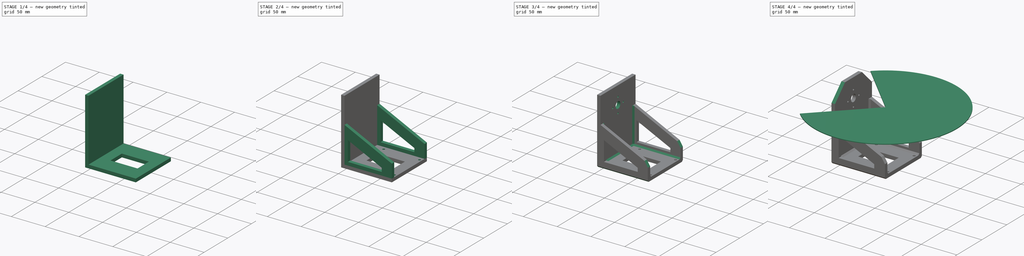
[diagram: build sequence overview — one tinted view per stage of 4, left to right]
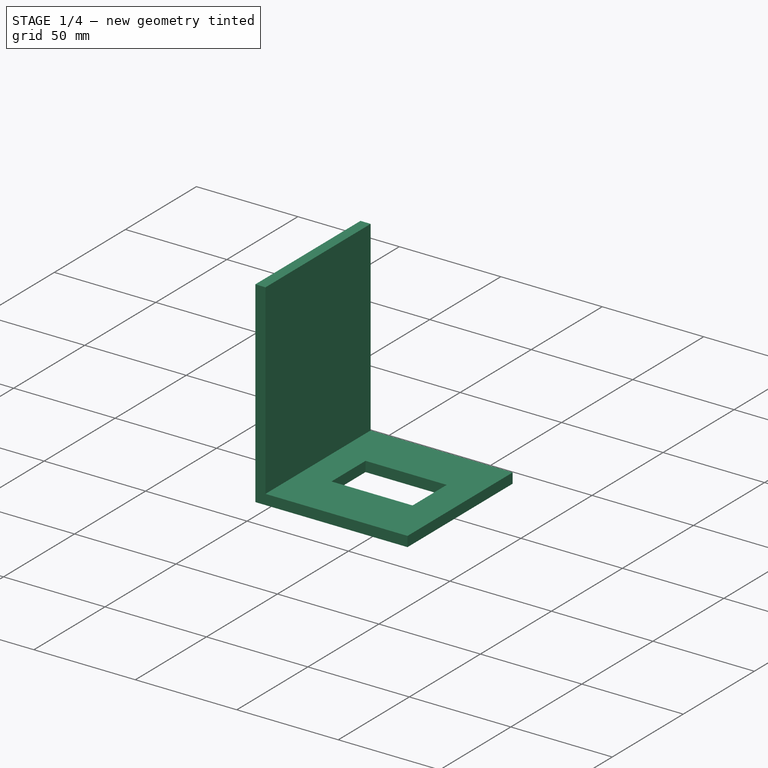
[diagram: stage 1 of 4 — iso view after this stage's code; geometry added in this stage tinted green]
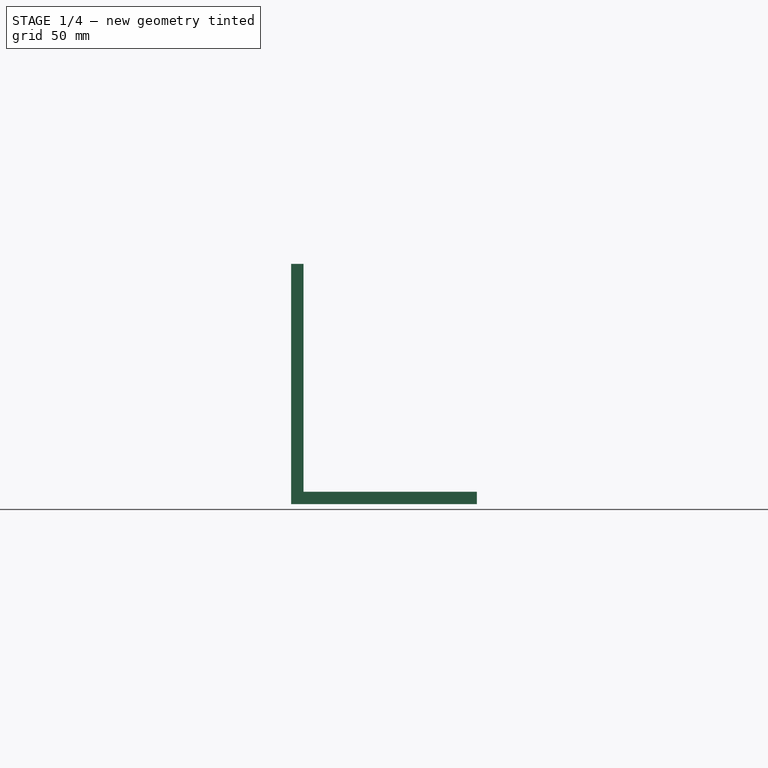
[diagram: stage 1 of 4 — front view after this stage's code; geometry added in this stage tinted green]
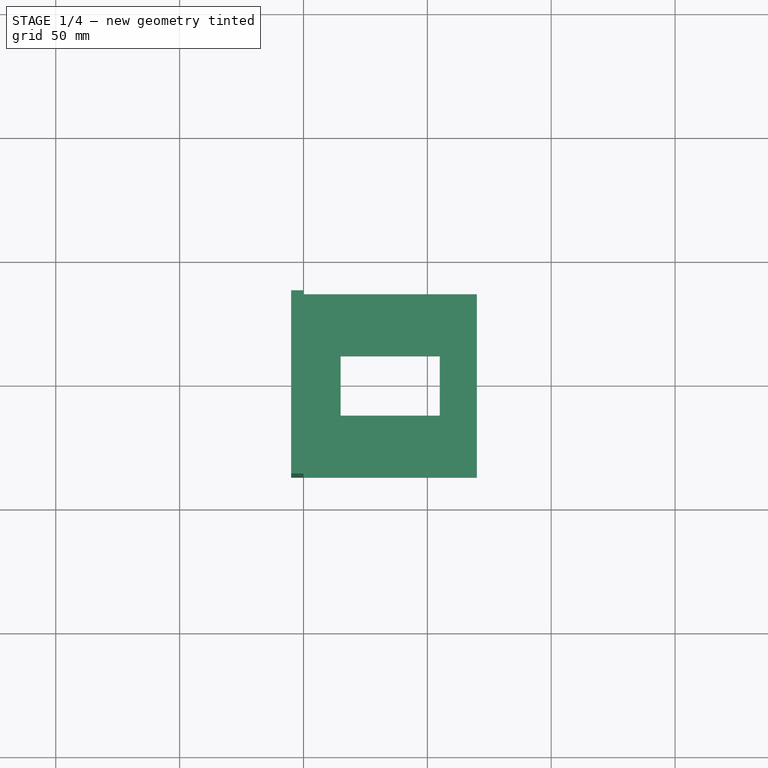
[diagram: stage 1 of 4 — top view after this stage's code; geometry added in this stage tinted green]
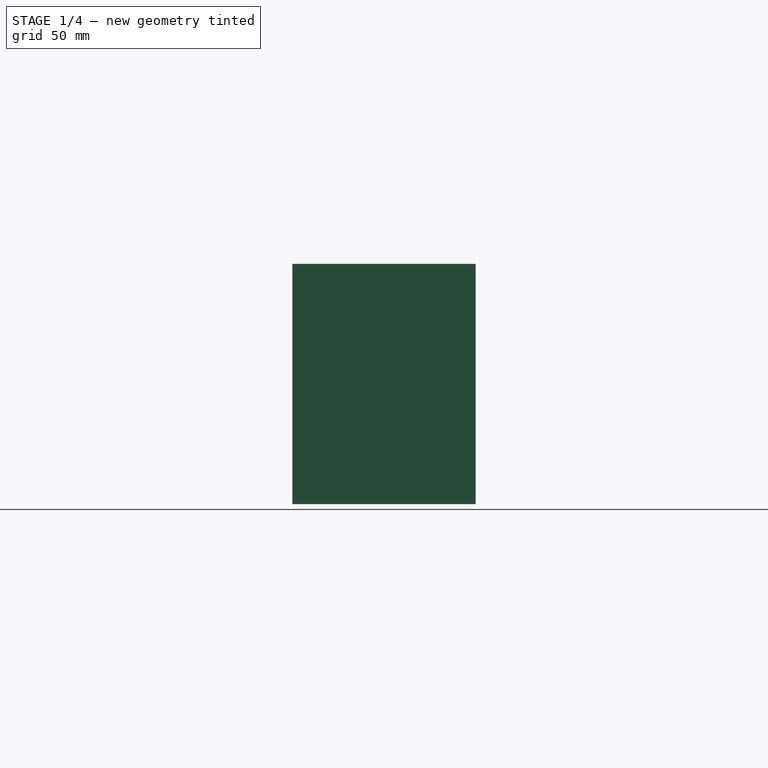
[diagram: stage 1 of 4 — right view after this stage's code; geometry added in this stage tinted green]
FCSTD DOCUMENT  (FreeCAD 0.20R29410 (Git))
Label: UTM_30LX_stand-df
License: All rights reserved
LicenseURL: http://en.wikipedia.org/wiki/All_rights_reserved
objects: Sketcher::SketchObject×6, PartDesign::Pad×4, PartDesign::Chamfer×3, Part::Feature×2, PartDesign::Body×2, Spreadsheet::Sheet×1, PartDesign::Mirrored×1, PartDesign::Hole×1, PartDesign::Pocket×1
note: 29 computed .brp shape members not serialized (recipe doc carries the construction recipe); baked Part::Feature solids carry a one-line shape summary decoded from their .brp

FEATURE [PartDesign::Body] Body001  label="scanArea"
  Group = -> [Sketch005,Pad002]
  Origin = -> Origin001
  Tip = -> Pad002
FEATURE [PartDesign::Pad] Pad  label="bottom"
  Direction = (0,0,1)
  Length = 5
  Length2 = 10
  Profile = -> Sketch004
  ReferenceAxis = -> Sketch004 [N_Axis]
  Reversed = true
  Type = 0
  expr: Length = <<params>>.wallThickness
FEATURE [Sketcher::SketchObject] Sketch006  label="backSketch"
  FullyConstrained = true
  MapMode = 5
  Placement = pos=(0,0,0) rot=(0.57735,0.57735,0.57735;2.0944rad)
  Support = -> [YZ_Plane]
  expr: Constraints[10] = <<params>>.height
  expr: Constraints[8] = <<params>>.wallThickness
  expr: Constraints[9] = <<params>>.width
  sketch-geometry (4):
    g0: LineSegment StartX=-37 StartY=92 StartZ=0 EndX=37 EndY=92 EndZ=0
    g1: LineSegment StartX=37 StartY=92 StartZ=0 EndX=37 EndY=-5 EndZ=0
    g2: LineSegment StartX=37 StartY=-5 StartZ=0 EndX=-37 EndY=-5 EndZ=0
    g3: LineSegment StartX=-37 StartY=-5 StartZ=0 EndX=-37 EndY=92 EndZ=0
  constraints (11):
    c: Coincident(g0,g1)
    c: Coincident(g1,g2)
    c: Coincident(g2,g3)
    c: Coincident(g3,g0)
    c: Horizontal(g2)
    c: Vertical(g1)
    c: Vertical(g3)
    c: Symmetric(g0,g0,g-2)
    c: DistanceY(g1,g-1) = 5
    c: DistanceX(g0,g0) = 74
    c: DistanceY(g1,g1) = 97
FEATURE [PartDesign::Pad] Pad003  label="back"
  BaseFeature = -> Pad
  Direction = (1,-2e-16,3e-16)
  Length = 5
  Length2 = 10
  Profile = -> Sketch006
  ReferenceAxis = -> Sketch006 [N_Axis]
  Reversed = true
  Type = 0
  expr: Length = <<params>>.wallThickness
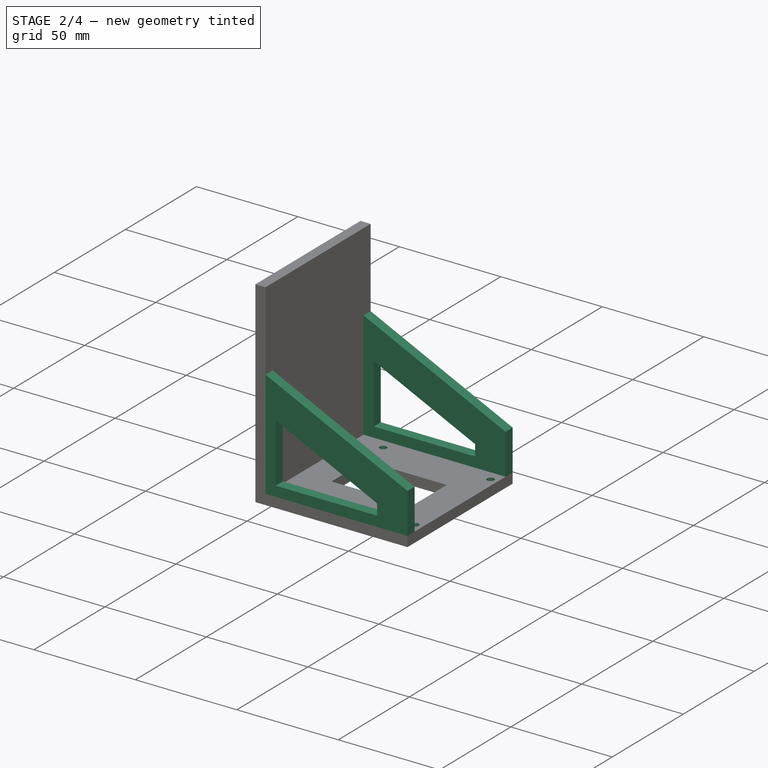
[diagram: stage 2 of 4 — iso view after this stage's code; geometry added in this stage tinted green]
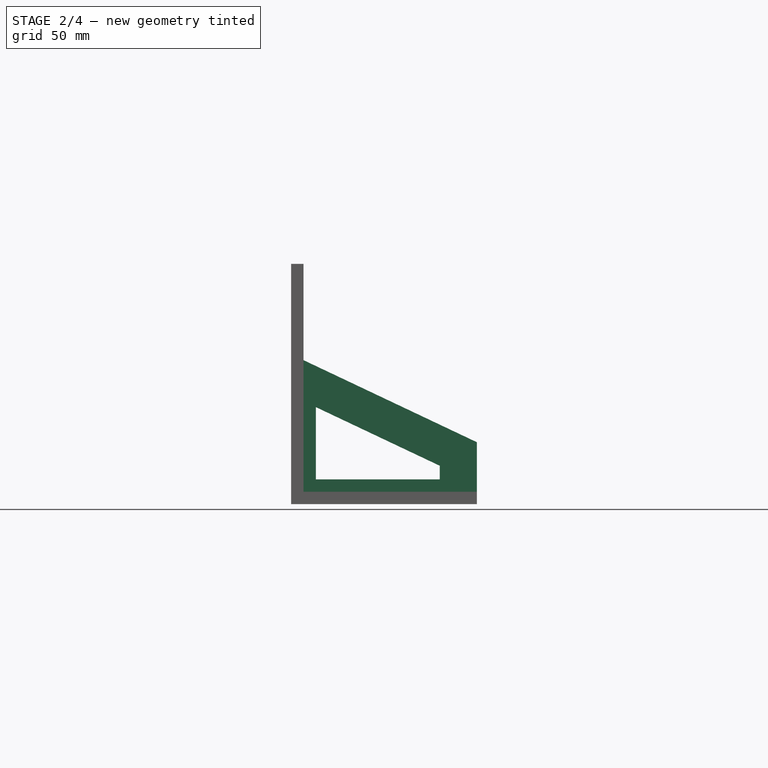
[diagram: stage 2 of 4 — front view after this stage's code; geometry added in this stage tinted green]
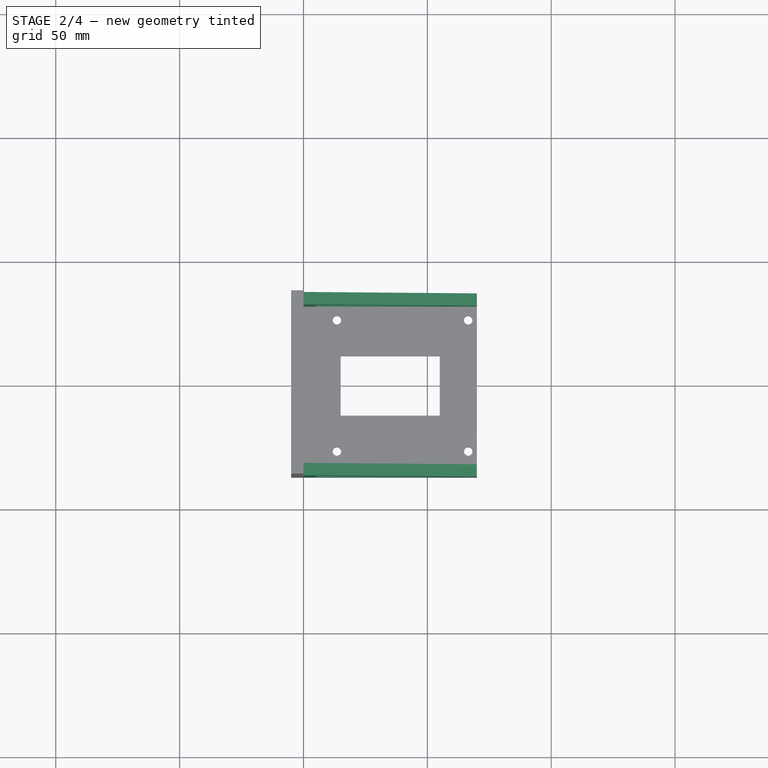
[diagram: stage 2 of 4 — top view after this stage's code; geometry added in this stage tinted green]
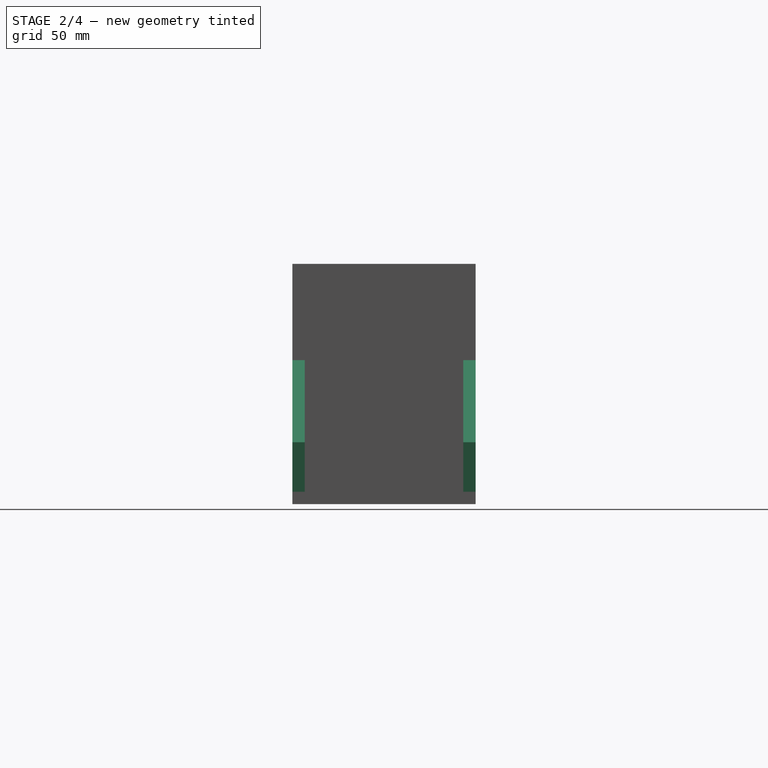
[diagram: stage 2 of 4 — right view after this stage's code; geometry added in this stage tinted green]
FEATURE [PartDesign::Pad] Pad004  label="side"
  BaseFeature = -> Pad003
  Direction = (0,-1,-2e-16)
  Length = 5
  Length2 = 10
  Profile = -> Sketch001
  ReferenceAxis = -> Sketch001 [N_Axis]
  Reversed = true
  Type = 0
  expr: Length = <<params>>.wallThickness
FEATURE [PartDesign::Mirrored] Mirrored
  BaseFeature = -> Pad004
  MirrorPlane = -> XZ_Plane
  Originals = -> [Pad004]
FEATURE [PartDesign::Hole] Hole  label="lidarMounting"
  BaseFeature = -> Mirrored
  CustomThreadClearance = 0
  Depth = 289.291
  DepthType = 1
  Diameter = 3.4
  DrillForDepth = false
  DrillPoint = 1
  DrillPointAngle = 118
  HoleCutCountersinkAngle = 90
  HoleCutCustomValues = false
  HoleCutDepth = 0
  HoleCutDiameter = 6.1
  HoleCutType = 2
  ModelThread = false
  Profile = -> Sketch003
  Reversed = true
  Tapered = false
  TaperedAngle = 90
  ThreadClass = 0
  ThreadDepth = 289.291
  ThreadDepthType = 0
  ThreadDirection = 0
  ThreadFit = 0
  ThreadSize = 9
  ThreadType = 1
  Threaded = false
  UseCustomThreadClearance = false
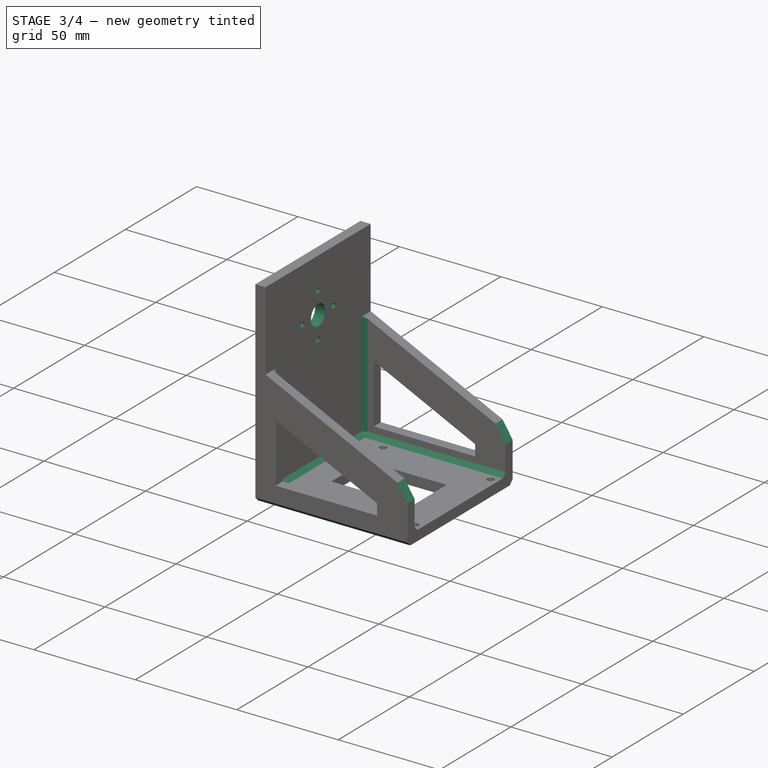
[diagram: stage 3 of 4 — iso view after this stage's code; geometry added in this stage tinted green]
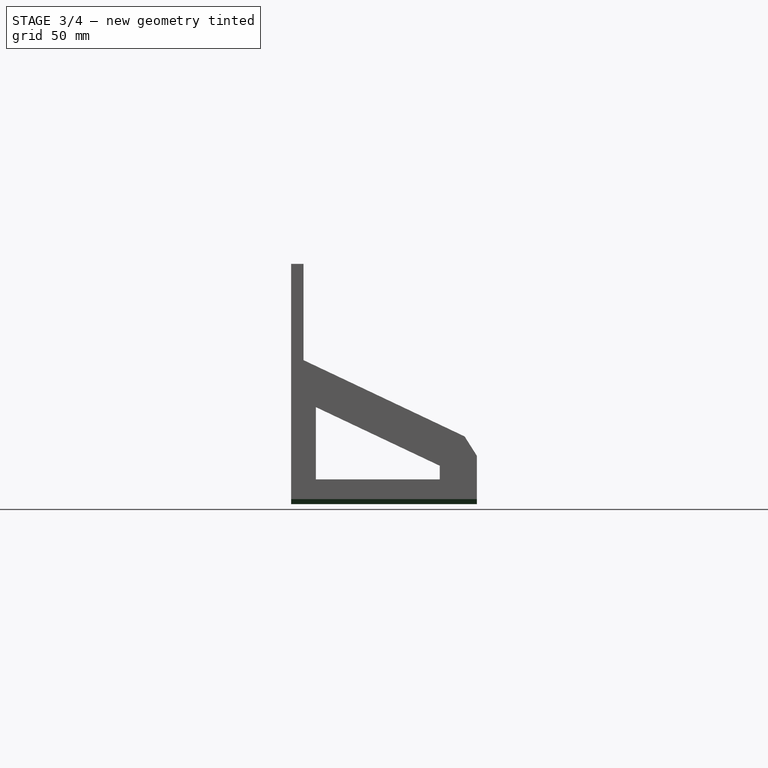
[diagram: stage 3 of 4 — front view after this stage's code; geometry added in this stage tinted green]
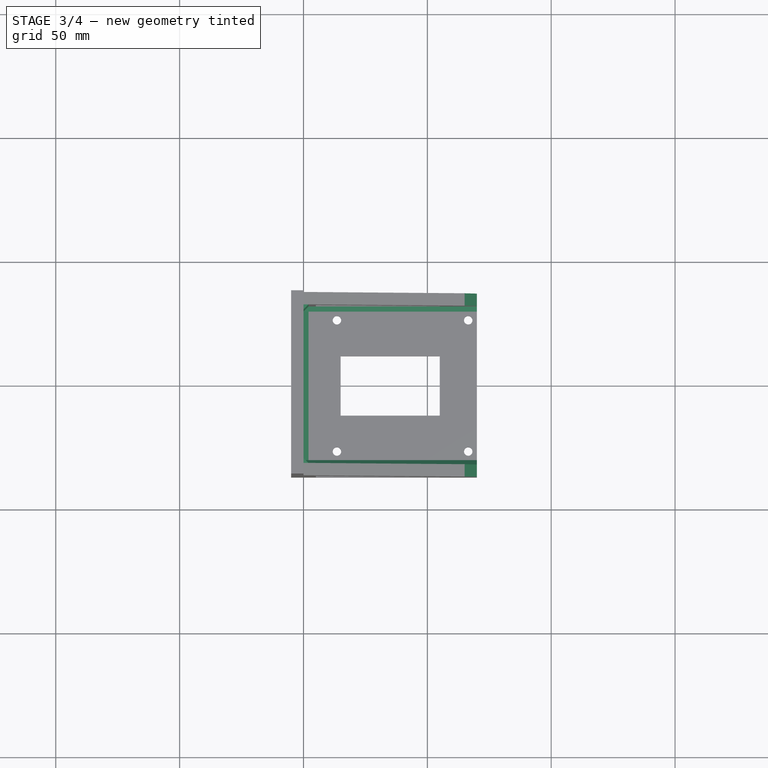
[diagram: stage 3 of 4 — top view after this stage's code; geometry added in this stage tinted green]
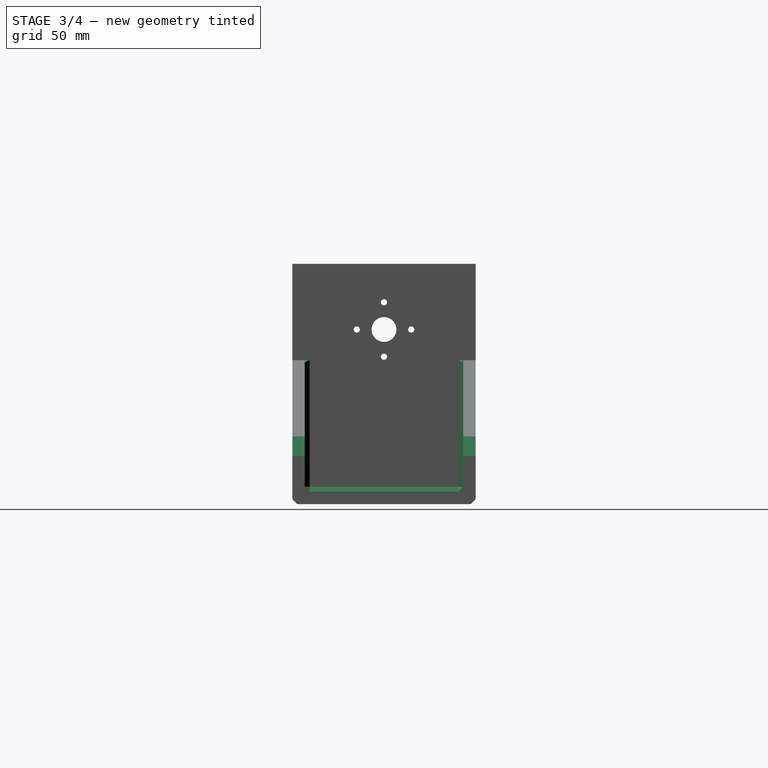
[diagram: stage 3 of 4 — right view after this stage's code; geometry added in this stage tinted green]
FEATURE [PartDesign::Pocket] Pocket  label="servoMounting"
  BaseFeature = -> Hole
  Direction = (-1,2e-16,-3e-16)
  Length = 5
  Length2 = 5
  Profile = -> Sketch002
  ReferenceAxis = -> Sketch002 [N_Axis]
  Refine = true
  Type = 1
FEATURE [PartDesign::Chamfer] Chamfer
  Angle = 45
  Base = -> Pocket [Edge11,Edge20,Edge47,Edge9,Edge10,Edge98,Edge96]
  BaseFeature = -> Pocket
  ChamferType = 0
  FlipDirection = false
  Size = 2
  Size2 = 1
  SupportTransform = false
  UseAllEdges = false
FEATURE [PartDesign::Chamfer] Chamfer001
  Angle = 45
  Base = -> Chamfer [Edge21,Edge3]
  BaseFeature = -> Chamfer
  ChamferType = 0
  FlipDirection = false
  Size = 5.5
  Size2 = 1
  SupportTransform = false
  UseAllEdges = false
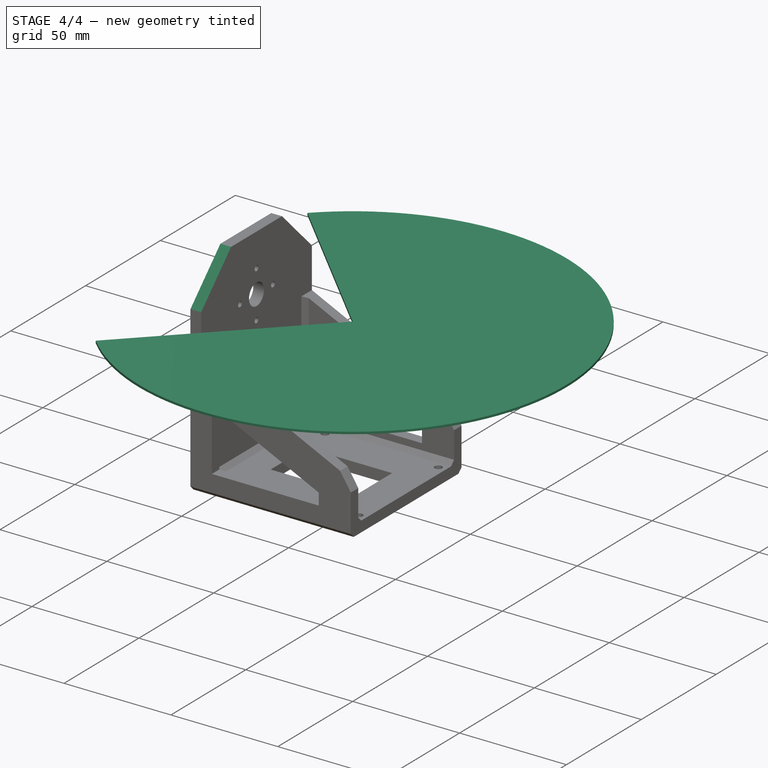
[diagram: stage 4 of 4 — iso view after this stage's code; geometry added in this stage tinted green]
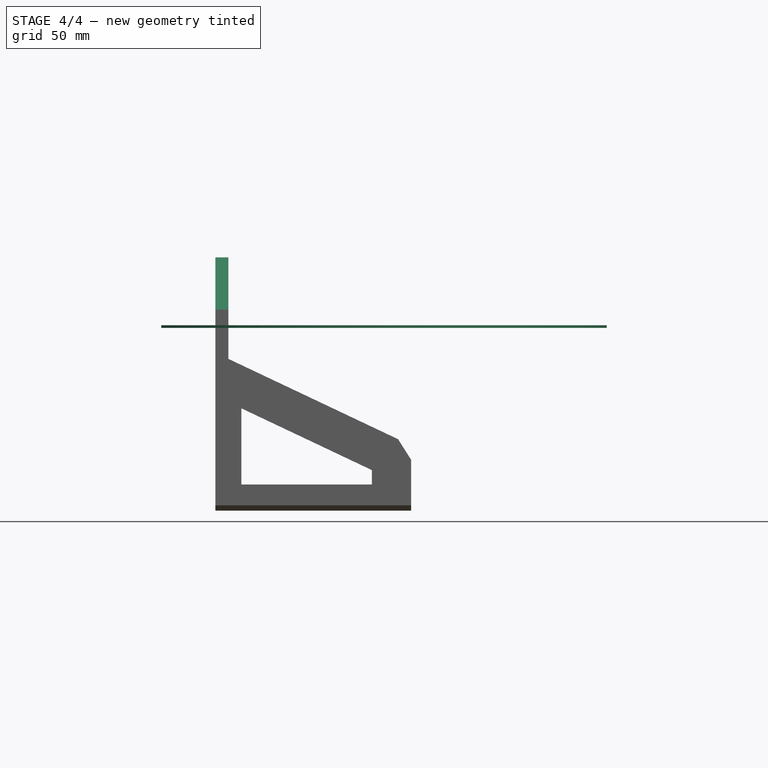
[diagram: stage 4 of 4 — front view after this stage's code; geometry added in this stage tinted green]
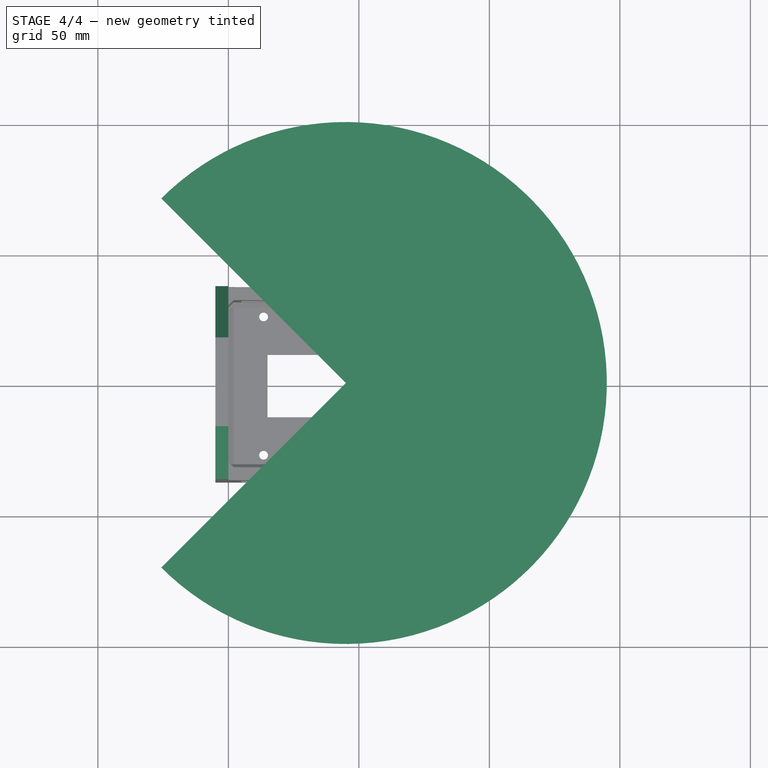
[diagram: stage 4 of 4 — top view after this stage's code; geometry added in this stage tinted green]
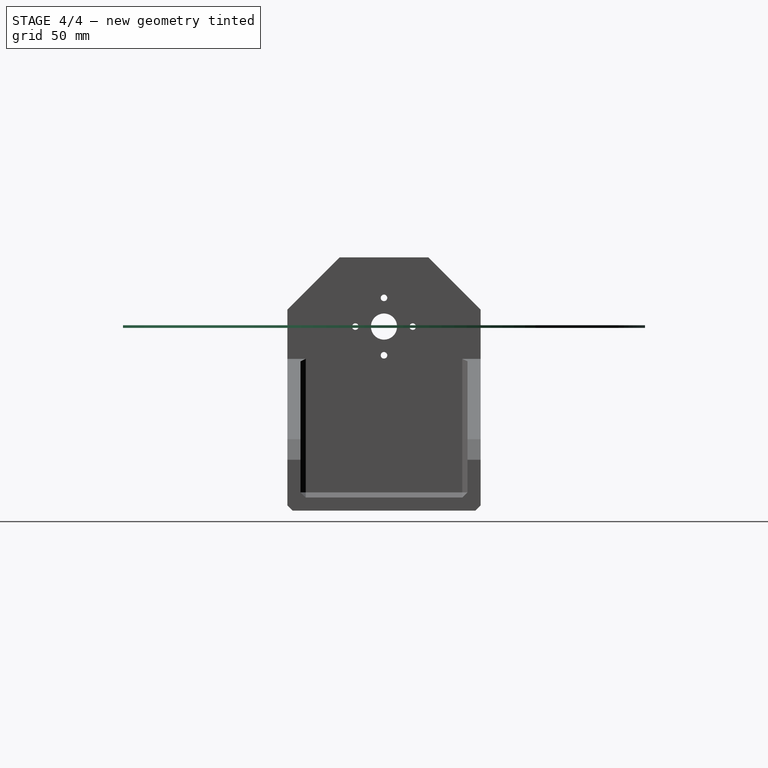
[diagram: stage 4 of 4 — right view after this stage's code; geometry added in this stage tinted green]
FEATURE [Spreadsheet::Sheet] Spreadsheet  label="params"
  cells = C1=URG; D1=UTM; A2=width; B2(width)==lidarWidth + 2 * clearanceSide + 2 * wallThickness; C2=Calculated; A3=length; B3(length)==lidarWidth + wallThickness + clearanceBack; C3=Calculated; A4=height; B4(height)==lidarHeight + clearanceBottom + wallThickness; C4=Calculated; A6=wallThickness; B6(wallThickness)==5mm; A8=clearanceBack; B8(clearanceBack)==10mm; A9=clearanceBottom; B9(clearanceBottom)==5mm; A10=clearanceSide; B10(clearanceSide)==2mm; A11=clearanceCutout; B11(clearanceCutout)==15mm; A12=clearanceTransmitter; B12(clearanceTransmitter)==10mm; A14=servoCenterDiameter; B14(servoCenterDiameter)==10mm; C14==8.1mm; D14==10mm; A15=servoScrewDiameter; B15(servoScrewDiameter)==2.5mm; A16=Servo_horn_screw_positon_diameter; B16(servoScrewPostitionDiameter)==22mm; C16==16mm; D16==22mm; A18=lidarWidth; B18(lidarWidth)==60mm; C18==50mm; D18==60mm; A19=lidarHeight; B19(lidarHeight)==87mm; C19==70mm; D19==87mm; A20=lidarTransmitterPos; B20(lidarTransmitterPos)==60.5mm; C20==53.15mm; D20==60.5mm; A21=lidarMountingScrewDiameter; B21(lidarMountingScrewDiameter)==3.1mm; A22=lidarMountingScrewDistance; B22(lidarMountingScrewDistance)==53mm; C22==40mm; D22==53mm
FEATURE [Sketcher::SketchObject] Sketch001  label="sideSketch"
  AttachmentOffset = pos=(0,0,37) rot=(0,0,1;0rad)
  FullyConstrained = true
  MapMode = 5
  Placement = pos=(0,-37,-8.2e-15) rot=(1,0,0;1.5708rad)
  Support = -> [XZ_Plane]
  expr: .AttachmentOffset.Base.z = Spreadsheet.width / 2
  expr: Constraints[10] = <<params>>.wallThickness
  expr: Constraints[23] = <<params>>.length
  expr: Constraints[5] = <<params>>.lidarTransmitterPos + <<params>>.clearanceBottom - <<params>>.clearanceTransmitter
  expr: Constraints[6] = <<params>>.clearanceBottom + 20mm
  expr: Constraints[9] = <<params>>.wallThickness
  sketch-geometry (8):
    g0: LineSegment StartX=-5 StartY=55.5 StartZ=0 EndX=70 EndY=20 EndZ=0
    g1: LineSegment StartX=70 StartY=20 StartZ=0 EndX=70 EndY=-5 EndZ=0
    g2: LineSegment StartX=-5 StartY=-5 StartZ=0 EndX=-5 EndY=55.5 EndZ=0
    g3: LineSegment StartX=-5 StartY=-5 StartZ=0 EndX=70 EndY=-5 EndZ=0
    g4: LineSegment StartX=5 StartY=34.1712 StartZ=0 EndX=55 EndY=10.5045 EndZ=0
    g5: LineSegment StartX=55 StartY=10.5045 StartZ=0 EndX=55 EndY=5 EndZ=0
    g6: LineSegment StartX=55 StartY=5 StartZ=0 EndX=5 EndY=5 EndZ=0
    g7: LineSegment StartX=5 StartY=5 StartZ=0 EndX=5 EndY=34.1712 EndZ=0
  constraints (24):
    c: Coincident(g0,g1)
    c: Vertical(g1)
    c: Coincident(g2,g0)
    c: Vertical(g2)
    c: Coincident(g3,g1)
    c: DistanceY(g-1,g0) = 55.5
    c: DistanceY(g1,g1) = 25
    c: Horizontal(g3)
    c: Coincident(g3,g2)
    c: DistanceX(g2,g-1) = 5
    c: DistanceY(g2,g-1) = 5
    c: Coincident(g4,g5)
    c: Coincident(g5,g6)
    c: Horizontal(g6)
    c: Coincident(g6,g7)
    c: Coincident(g7,g4)
    c: Vertical(g5)
    c: Vertical(g7)
    c: Parallel(g4,g0)
    c: DistanceX(g5,g1) = 15
    c: Distance(g6,g2) = 10
    c: DistanceY(g1,g5) = 10
    c: Distance(g4,g0) = 15
    c: DistanceX(g3,g3) = 75
FEATURE [Sketcher::SketchObject] Sketch002  label="servoMountingSketch"
  FullyConstrained = true
  MapMode = 5
  Placement = pos=(0,0,0) rot=(0.57735,0.57735,0.57735;2.0944rad)
  Support = -> [YZ_Plane]
  expr: Constraints[10] = Spreadsheet.servoScrewDiameter
  expr: Constraints[15] = Spreadsheet.servoScrewPostitionDiameter
  expr: Constraints[16] = <<params>>.clearanceBottom + <<params>>.lidarTransmitterPos
  expr: Constraints[2] = Spreadsheet.servoCenterDiameter
  sketch-geometry (6):
    g0: Circle CenterX=0 CenterY=65.5 CenterZ=0 NormalX=0 NormalY=0 NormalZ=1 AngleXU=0 Radius=5
    g1: Circle CenterX=0 CenterY=65.5 CenterZ=0 NormalX=0 NormalY=0 NormalZ=1 AngleXU=0 Radius=11
    g2: Circle CenterX=0 CenterY=76.5 CenterZ=0 NormalX=0 NormalY=0 NormalZ=1 AngleXU=0 Radius=1.25
    g3: Circle CenterX=11 CenterY=65.5 CenterZ=0 NormalX=0 NormalY=0 NormalZ=1 AngleXU=0 Radius=1.25
    g4: Circle CenterX=0 CenterY=54.5 CenterZ=0 NormalX=0 NormalY=0 NormalZ=1 AngleXU=0 Radius=1.25
    g5: Circle CenterX=-11 CenterY=65.5 CenterZ=0 NormalX=0 NormalY=0 NormalZ=1 AngleXU=0 Radius=1.25
  constraints (17):
    c: PointOnObject(g0,g-2)
    c: Coincident(g1,g0)
    c: Diameter(g0) = 10
    c: PointOnObject(g2,g1)
    c: PointOnObject(g3,g1)
    c: PointOnObject(g4,g1)
    c: PointOnObject(g5,g1)
    c: Equal(g2,g3)
    c: Equal(g3,g4)
    c: Equal(g4,g5)
    c: Diameter(g2) = 2.5
    c: Vertical(g2,g0)
    c: Vertical(g4,g0)
    c: Horizontal(g5,g3)
    c: Horizontal(g3,g0)
    c: Diameter(g1) = 22
    c: DistanceY(g-1,g0) = 65.5
FEATURE [Sketcher::SketchObject] Sketch003  label="lidarMountingSketch"
  AttachmentOffset = pos=(0,0,-5) rot=(0,0,1;0rad)
  FullyConstrained = true
  MapMode = 5
  Placement = pos=(0,0,-5) rot=(0,0,1;0rad)
  Support = -> [XY_Plane]
  expr: .AttachmentOffset.Base.z = -<<params>>.wallThickness
  expr: Constraints[17] = <<params>>.lidarMountingScrewDiameter
  expr: Constraints[18] = <<params>>.length - <<params>>.wallThickness - (<<params>>.lidarWidth - <<params>>.lidarMountingScrewDistance) / 2
  expr: Constraints[9] = <<params>>.lidarMountingScrewDistance
  sketch-geometry (8):
    g0: Circle CenterX=66.5 CenterY=26.5 CenterZ=0 NormalX=0 NormalY=0 NormalZ=1 AngleXU=0 Radius=1.55
    g1: Circle CenterX=13.5 CenterY=26.5 CenterZ=0 NormalX=0 NormalY=0 NormalZ=1 AngleXU=0 Radius=1.55
    g2: Circle CenterX=13.5 CenterY=-26.5 CenterZ=0 NormalX=0 NormalY=0 NormalZ=1 AngleXU=0 Radius=1.55
    g3: Circle CenterX=66.5 CenterY=-26.5 CenterZ=0 NormalX=0 NormalY=0 NormalZ=1 AngleXU=0 Radius=1.55
    g4: LineSegment StartX=13.5 StartY=26.5 StartZ=0 EndX=66.5 EndY=26.5 EndZ=0
    g5: LineSegment StartX=66.5 StartY=26.5 StartZ=0 EndX=66.5 EndY=-26.5 EndZ=0
    g6: LineSegment StartX=66.5 StartY=-26.5 StartZ=0 EndX=13.5 EndY=-26.5 EndZ=0
    g7: LineSegment StartX=13.5 StartY=-26.5 StartZ=0 EndX=13.5 EndY=26.5 EndZ=0
  constraints (19):
    c: Coincident(g4,g5)
    c: Coincident(g5,g6)
    c: Coincident(g6,g7)
    c: Coincident(g7,g4)
    c: Horizontal(g4)
    c: Horizontal(g6)
    c: Vertical(g7)
    c: Equal(g5,g4)
    c: Symmetric(g4,g5,g-1)
    c: DistanceX(g4,g4) = 53
    c: Equal(g0,g1)
    c: Equal(g1,g2)
    c: Equal(g2,g3)
    c: Coincident(g2,g6)
    c: Coincident(g3,g5)
    c: Coincident(g0,g4)
    c: Coincident(g1,g4)
    c: Diameter(g0) = 3.1
    c: DistanceX(g-1,g3) = 66.5
FEATURE [Sketcher::SketchObject] Sketch004  label="bottomSketch"
  FullyConstrained = true
  MapMode = 5
  Support = -> [XY_Plane]
  expr: Constraints[15] = <<params>>.length
  expr: Constraints[16] = <<params>>.width
  expr: Constraints[18] = <<params>>.wallThickness
  expr: Constraints[19] = <<params>>.clearanceCutout
  expr: Constraints[20] = <<params>>.clearanceCutout + <<params>>.wallThickness
  expr: Constraints[21] = <<params>>.clearanceCutout + <<params>>.wallThickness * 2
  sketch-geometry (8):
    g0: LineSegment StartX=15 StartY=12 StartZ=0 EndX=55 EndY=12 EndZ=0
    g1: LineSegment StartX=55 StartY=12 StartZ=0 EndX=55 EndY=-12 EndZ=0
    g2: LineSegment StartX=55 StartY=-12 StartZ=0 EndX=15 EndY=-12 EndZ=0
    g3: LineSegment StartX=15 StartY=-12 StartZ=0 EndX=15 EndY=12 EndZ=0
    g4: LineSegment StartX=-5 StartY=37 StartZ=0 EndX=70 EndY=37 EndZ=0
    g5: LineSegment StartX=70 StartY=37 StartZ=0 EndX=70 EndY=-37 EndZ=0
    g6: LineSegment StartX=70 StartY=-37 StartZ=0 EndX=-5 EndY=-37 EndZ=0
    g7: LineSegment StartX=-5 StartY=-37 StartZ=0 EndX=-5 EndY=37 EndZ=0
  constraints (22):
    c: Coincident(g0,g1)
    c: Coincident(g1,g2)
    c: Coincident(g2,g3)
    c: Coincident(g3,g0)
    c: Horizontal(g0)
    c: Horizontal(g2)
    c: Vertical(g1)
    c: Symmetric(g0,g2,g-1)
    c: Coincident(g4,g5)
    c: Coincident(g5,g6)
    c: Coincident(g6,g7)
    c: Coincident(g7,g4)
    c: Horizontal(g4)
    c: Horizontal(g6)
    c: Vertical(g7)
    c: DistanceX(g6,g6) = 75
    c: DistanceY(g5,g5) = 74
    c: Symmetric(g5,g4,g-1)
    c: DistanceX(g6,g-1) = 5
    c: Distance(g1,g5) = 15
    c: Distance(g2,g7) = 20
    c: Distance(g0,g4) = 25
FEATURE [Part::Feature] Part__Feature  label="UTM 30LX"
  Placement = pos=(40,0,46) rot=(0.57735,0.57735,0.57735;2.0944rad)
  shape: bbox 79.8 x 79.01 x 87 mm, 1102 faces (baked)
FEATURE [Sketcher::SketchObject] Sketch005
  AttachmentOffset = pos=(0,0,65.5) rot=(0,0,1;0rad)
  FullyConstrained = true
  MapMode = 5
  Placement = pos=(0,0,65.5) rot=(0,0,1;0rad)
  Support = -> [XY_Plane001]
  expr: .AttachmentOffset.Base.z = Spreadsheet.lidarTransmitterPos + Spreadsheet.clearanceBottom
  expr: Constraints[8] = Spreadsheet.length - Spreadsheet.lidarWidth / 2
  sketch-geometry (3):
    g0: ArcOfCircle CenterX=45 CenterY=0 CenterZ=0 NormalX=0 NormalY=0 NormalZ=1 AngleXU=0 Radius=100 StartAngle=3.92699 EndAngle=8.63938
    g1: LineSegment StartX=-25.7107 StartY=70.7107 StartZ=0 EndX=45 EndY=0 EndZ=0
    g2: LineSegment StartX=-25.7107 StartY=-70.7107 StartZ=0 EndX=45 EndY=0 EndZ=0
  constraints (9):
    c: PointOnObject(g0,g-1)
    c: Vertical(g0,g0)
    c: Diameter(g0) = 200
    c: Coincident(g1,g0)
    c: Coincident(g1,g0)
    c: Coincident(g2,g0)
    c: Coincident(g2,g0)
    c: Angle(g1,g2) = 1.5708
    c: DistanceX(g-1,g0) = 45
FEATURE [PartDesign::Pad] Pad002
  Direction = (0,0,1)
  Length = 1
  Length2 = 10
  Midplane = true
  Profile = -> Sketch005
  ReferenceAxis = -> Sketch005 [N_Axis]
  Type = 0
FEATURE [PartDesign::Chamfer] Chamfer002
  Angle = 45
  Base = -> Chamfer001 [Edge66,Edge23]
  BaseFeature = -> Chamfer001
  ChamferType = 0
  FlipDirection = false
  Refine = true
  Size = 20
  Size2 = 1
  SupportTransform = false
  UseAllEdges = false
FEATURE [PartDesign::Body] Body
  Group = -> [Sketch001,Sketch002,Sketch003,Sketch004,Pad,Sketch006,Pad003,Pad004,Mirrored,Hole,Pocket,Chamfer,Chamfer001,Chamfer002]
  Origin = -> Origin
  Tip = -> Chamfer002
FEATURE [Part::Feature] Part__Feature001  label="URG-0xxx"
  Placement = pos=(34.25,4e-15,3.5) rot=(1,0,0;1.5708rad)
  shape: bbox 52.7 x 75.06 x 70.17 mm, 805 faces, 11 solids (baked)
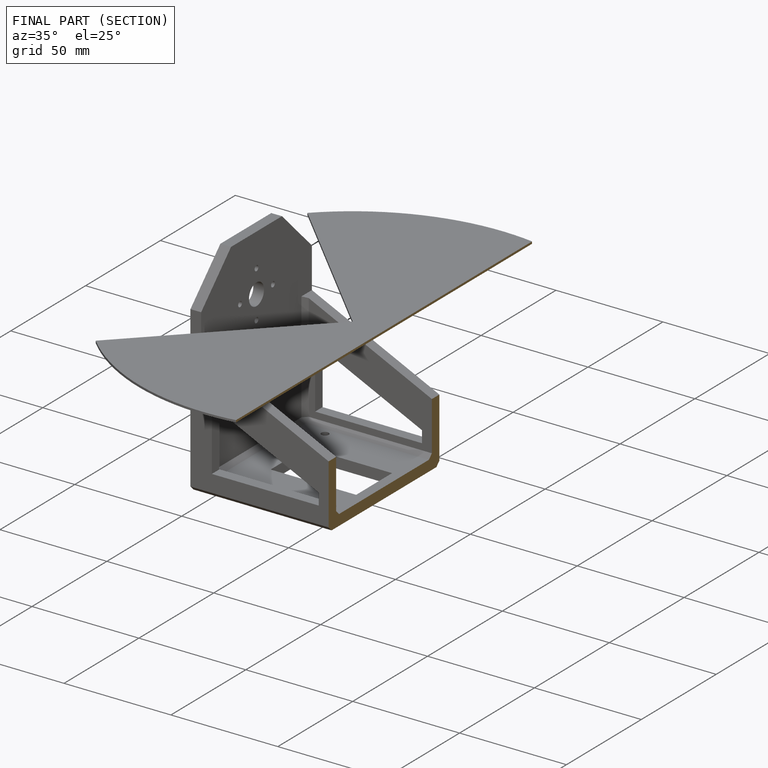
[diagram: finished part — half-section view (interior)]
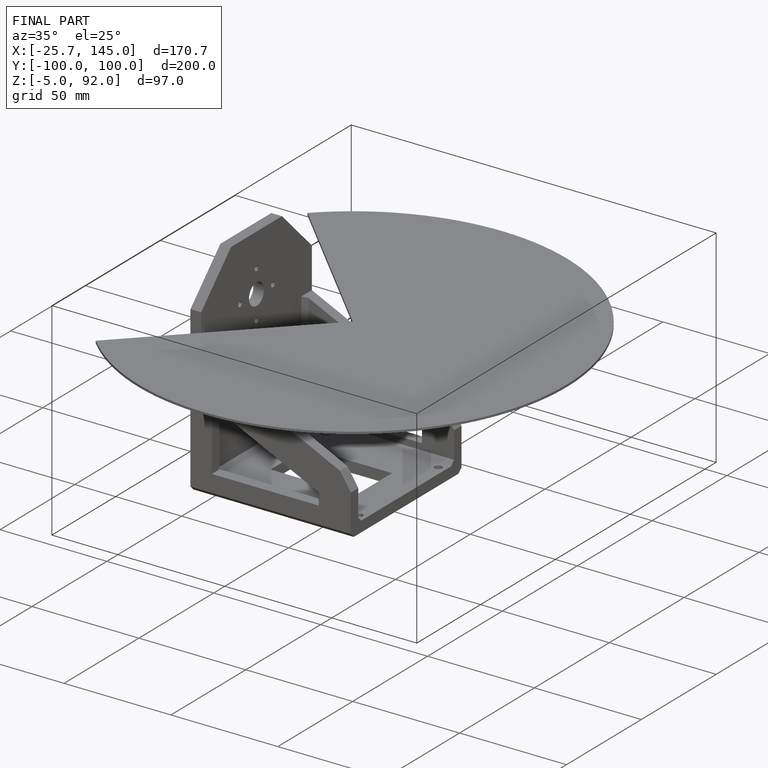
[diagram: finished part — iso view with bounding-box wireframe]
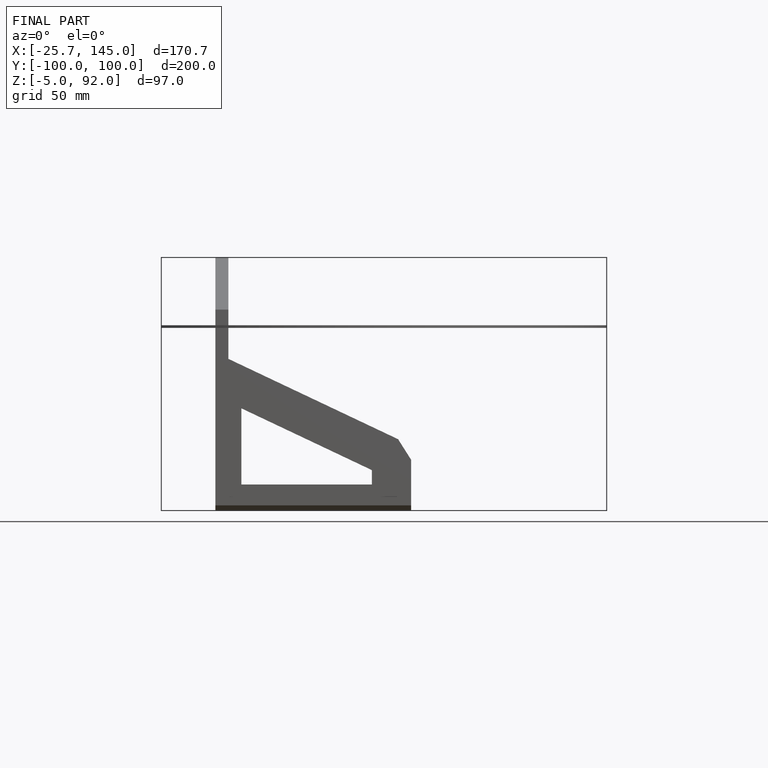
[diagram: finished part — front view with bounding-box wireframe]
